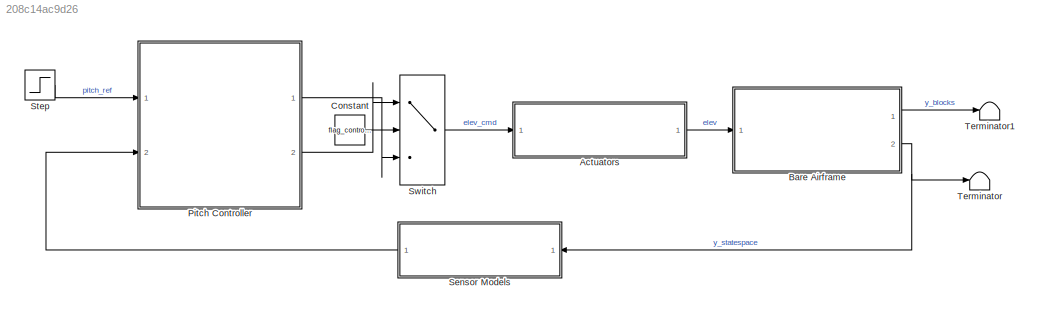
MODEL slx_208c14ac9d26
KIND model
CONFIG AbsTol = auto
CONFIG EnableMultiTasking = off
CONFIG FixedStep = 0.005
CONFIG MaxStep = auto
CONFIG MinStep = auto
CONFIG RelTol = 1e-3
CONFIG SampleTimeConstraint = Unconstrained
CONFIG Solver = FixedStepAuto
CONFIG SolverName = FixedStepAuto
CONFIG StartTime = 0.0
CONFIG StopTime = 20
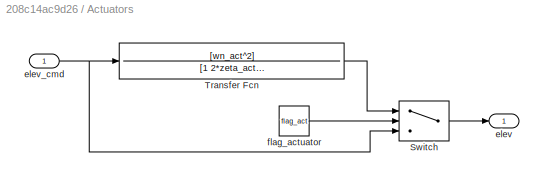
BLOCK [SubSystem] Actuators
  Ports = [1, 1]
  RequestExecContextInheritance = off
BLOCK [Switch] Actuators/Switch
  Criteria = u2 > Threshold
  InputSameDT = off
  SaturateOnIntegerOverflow = off
BLOCK [TransferFcn] Actuators/Transfer Fcn
  Denominator = [1 2*zeta_act*wn_act wn_act^2]
  Numerator = [wn_act^2]
BLOCK [Outport] Actuators/elev
  IconDisplay = Port number
  VectorParamsAs1DForOutWhenUnconnected = off
BLOCK [Inport] Actuators/elev_cmd
  IconDisplay = Port number
BLOCK [Constant] Actuators/flag_actuator
  Value = flag_act
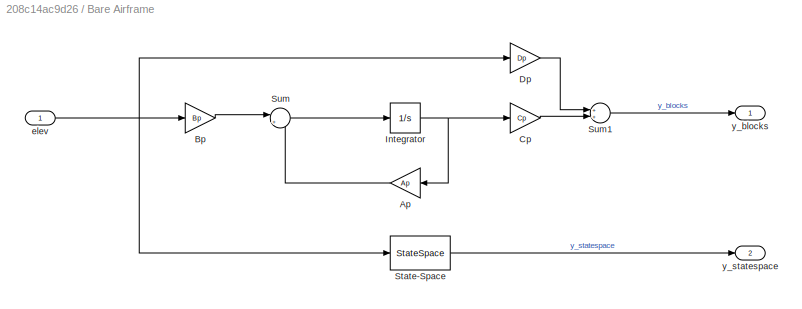
BLOCK [SubSystem] Bare Airframe
  Ports = [1, 2]
  RequestExecContextInheritance = off
BLOCK [Gain] Bare Airframe/Ap
  Gain = Ap
  Multiplication = Matrix(K*u) (u vector)
  OutDataTypeStr = Inherit: Inherit via internal rule
  ParamDataTypeStr = Inherit: Inherit via internal rule
  SaturateOnIntegerOverflow = off
BLOCK [Gain] Bare Airframe/Bp
  Gain = Bp
  Multiplication = Matrix(K*u) (u vector)
  OutDataTypeStr = Inherit: Inherit via internal rule
  ParamDataTypeStr = Inherit: Inherit via internal rule
  SaturateOnIntegerOverflow = off
BLOCK [Gain] Bare Airframe/Cp
  Gain = Cp
  Multiplication = Matrix(K*u) (u vector)
  OutDataTypeStr = Inherit: Inherit via internal rule
  ParamDataTypeStr = Inherit: Inherit via internal rule
  SaturateOnIntegerOverflow = off
BLOCK [Gain] Bare Airframe/Dp
  Gain = Dp
  Multiplication = Matrix(K*u) (u vector)
  OutDataTypeStr = Inherit: Inherit via internal rule
  ParamDataTypeStr = Inherit: Inherit via internal rule
  SaturateOnIntegerOverflow = off
BLOCK [Integrator] Bare Airframe/Integrator
  ContinuousStateAttributes = {'u', 'w','q','theta'}
  InitialCondition = zeros(4,1)
  Ports = [1, 1]
BLOCK [StateSpace] Bare Airframe/State-Space
  A = Ap
  B = Bp
  C = Cp
  D = Dp
  InitialCondition = 0
  Ports = [1, 1]
BLOCK [Sum] Bare Airframe/Sum
  IconShape = round
  InputSameDT = off
  Inputs = |++
  OutDataTypeStr = Inherit: Inherit via internal rule
  Ports = [2, 1]
  SaturateOnIntegerOverflow = off
BLOCK [Sum] Bare Airframe/Sum1
  InputSameDT = off
  OutDataTypeStr = Inherit: Inherit via internal rule
  Ports = [2, 1]
  SaturateOnIntegerOverflow = off
BLOCK [Inport] Bare Airframe/elev
  IconDisplay = Port number
BLOCK [Outport] Bare Airframe/y_blocks
  IconDisplay = Port number
  VectorParamsAs1DForOutWhenUnconnected = off
BLOCK [Outport] Bare Airframe/y_statespace
  IconDisplay = Port number
  Port = 2
  VectorParamsAs1DForOutWhenUnconnected = off
BLOCK [Constant] Constant
  Value = flag_controller
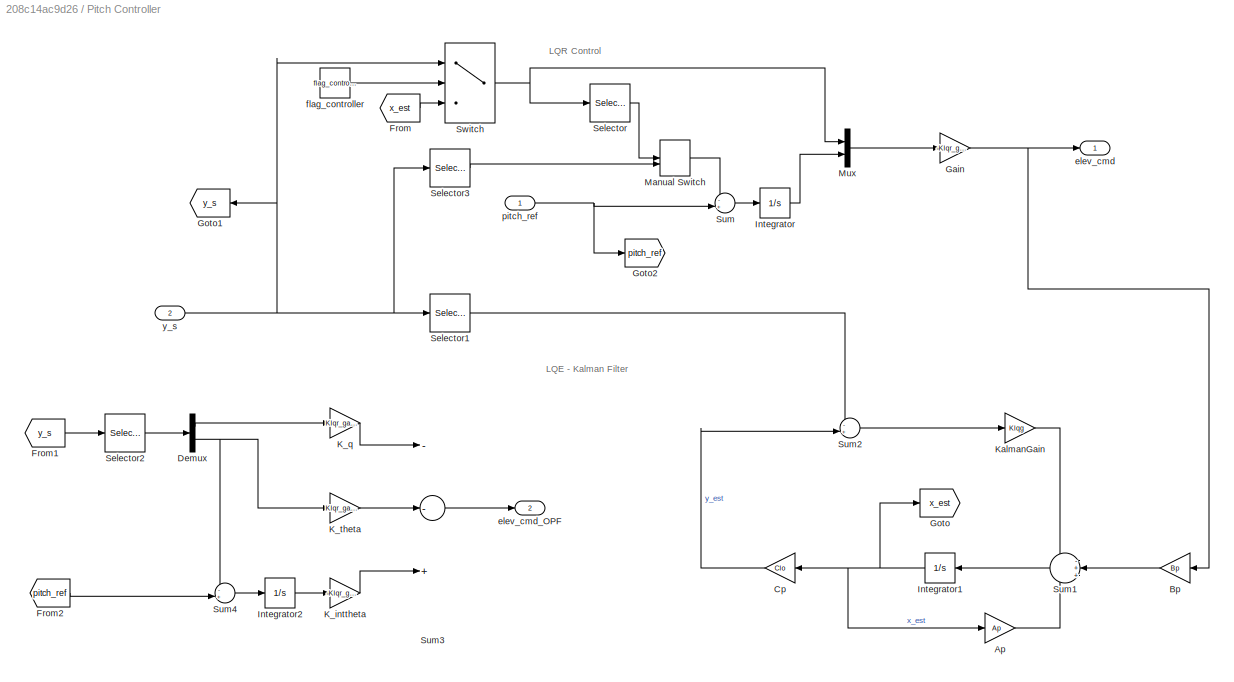
BLOCK [SubSystem] Pitch Controller
  Ports = [2, 2]
  RequestExecContextInheritance = off
BLOCK [Gain] Pitch Controller/Ap
  Gain = Ap
  Multiplication = Matrix(K*u) (u vector)
  OutDataTypeStr = Inherit: Inherit via internal rule
  ParamDataTypeStr = Inherit: Inherit via internal rule
  SaturateOnIntegerOverflow = off
BLOCK [Gain] Pitch Controller/Bp
  Gain = Bp
  Multiplication = Matrix(K*u) (u vector)
  OutDataTypeStr = Inherit: Inherit via internal rule
  ParamDataTypeStr = Inherit: Inherit via internal rule
  SaturateOnIntegerOverflow = off
BLOCK [Gain] Pitch Controller/Cp
  Gain = Clo
  Multiplication = Matrix(K*u) (u vector)
  OutDataTypeStr = Inherit: Inherit via internal rule
  ParamDataTypeStr = Inherit: Inherit via internal rule
  SaturateOnIntegerOverflow = off
BLOCK [Demux] Pitch Controller/Demux
  DisplayOption = bar
  Outputs = 2
  Ports = [1, 2]
BLOCK [From] Pitch Controller/From
  GotoTag = x_est
BLOCK [From] Pitch Controller/From1
  GotoTag = y_s
BLOCK [From] Pitch Controller/From2
  GotoTag = pitch_ref
BLOCK [Gain] Pitch Controller/Gain
  Gain = -Klqr_gain
  Multiplication = Matrix(K*u) (u vector)
  OutDataTypeStr = Inherit: Inherit via internal rule
  ParamDataTypeStr = Inherit: Inherit via internal rule
  SaturateOnIntegerOverflow = off
BLOCK [Goto] Pitch Controller/Goto
  GotoTag = x_est
BLOCK [Goto] Pitch Controller/Goto1
  GotoTag = y_s
BLOCK [Goto] Pitch Controller/Goto2
  GotoTag = pitch_ref
BLOCK [Integrator] Pitch Controller/Integrator
  Ports = [1, 1]
BLOCK [Integrator] Pitch Controller/Integrator1
  ContinuousStateAttributes = {'u', 'w','q','theta'}
  InitialCondition = zeros(4,1)
  Ports = [1, 1]
BLOCK [Integrator] Pitch Controller/Integrator2
  Ports = [1, 1]
BLOCK [Gain] Pitch Controller/K_inttheta
  Gain = -Klqr_gain(5)
  OutDataTypeStr = Inherit: Inherit via internal rule
  ParamDataTypeStr = Inherit: Inherit via internal rule
  SaturateOnIntegerOverflow = off
BLOCK [Gain] Pitch Controller/K_q
  Gain = Klqr_gain(3)
  OutDataTypeStr = Inherit: Inherit via internal rule
  ParamDataTypeStr = Inherit: Inherit via internal rule
  SaturateOnIntegerOverflow = off
BLOCK [Gain] Pitch Controller/K_theta
  Gain = Klqr_gain(4)
  OutDataTypeStr = Inherit: Inherit via internal rule
  ParamDataTypeStr = Inherit: Inherit via internal rule
  SaturateOnIntegerOverflow = off
BLOCK [Gain] Pitch Controller/KalmanGain
  Gain = Klqg
  Multiplication = Matrix(K*u) (u vector)
  OutDataTypeStr = Inherit: Inherit via internal rule
  ParamDataTypeStr = Inherit: Inherit via internal rule
  SaturateOnIntegerOverflow = off
BLOCK [ManualSwitch] Pitch Controller/Manual Switch
BLOCK [Mux] Pitch Controller/Mux
  DisplayOption = bar
  Inputs = 2
  Ports = [2, 1]
BLOCK [Selector] Pitch Controller/Selector
  IndexOptions = Index vector (dialog)
  Indices = 4
  InputPortWidth = 4
  OutputSizes = 1
  Ports = [1, 1]
BLOCK [Selector] Pitch Controller/Selector1
  IndexOptions = Index vector (dialog)
  Indices = [3 4]
  InputPortWidth = 4
  OutputSizes = 1
  Ports = [1, 1]
BLOCK [Selector] Pitch Controller/Selector2
  IndexOptions = Index vector (dialog)
  Indices = [3 4]
  InputPortWidth = 4
  OutputSizes = 1
  Ports = [1, 1]
BLOCK [Selector] Pitch Controller/Selector3
  IndexOptions = Index vector (dialog)
  Indices = 4
  InputPortWidth = 4
  OutputSizes = 1
  Ports = [1, 1]
BLOCK [Sum] Pitch Controller/Sum
  IconShape = round
  InputSameDT = off
  Inputs = -+|
  OutDataTypeStr = Inherit: Inherit via internal rule
  Ports = [2, 1]
  SaturateOnIntegerOverflow = off
BLOCK [Sum] Pitch Controller/Sum1
  IconShape = round
  InputSameDT = off
  Inputs = -++
  OutDataTypeStr = Inherit: Inherit via internal rule
  Ports = [3, 1]
  SaturateOnIntegerOverflow = off
BLOCK [Sum] Pitch Controller/Sum2
  IconShape = round
  InputSameDT = off
  Inputs = -+|
  OutDataTypeStr = Inherit: Inherit via internal rule
  Ports = [2, 1]
  SaturateOnIntegerOverflow = off
BLOCK [Sum] Pitch Controller/Sum3
  InputSameDT = off
  Inputs = --+
  OutDataTypeStr = Inherit: Inherit via internal rule
  Ports = [3, 1]
  SaturateOnIntegerOverflow = off
BLOCK [Sum] Pitch Controller/Sum4
  IconShape = round
  InputSameDT = off
  Inputs = -+|
  OutDataTypeStr = Inherit: Inherit via internal rule
  Ports = [2, 1]
  SaturateOnIntegerOverflow = off
BLOCK [Switch] Pitch Controller/Switch
  Criteria = u2 > Threshold
  InputSameDT = off
  SaturateOnIntegerOverflow = off
BLOCK [Outport] Pitch Controller/elev_cmd
  IconDisplay = Port number
  VectorParamsAs1DForOutWhenUnconnected = off
BLOCK [Outport] Pitch Controller/elev_cmd_OPF
  IconDisplay = Port number
  Port = 2
  VectorParamsAs1DForOutWhenUnconnected = off
BLOCK [Constant] Pitch Controller/flag_controller
  Value = flag_controller
BLOCK [Inport] Pitch Controller/pitch_ref
  IconDisplay = Port number
BLOCK [Inport] Pitch Controller/y_s 
  IconDisplay = Port number
  Port = 2
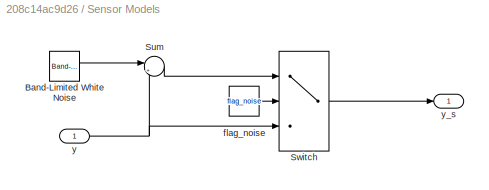
BLOCK [SubSystem] Sensor Models
  Ports = [1, 1]
  RequestExecContextInheritance = off
BLOCK [Reference] Sensor Models/Band-Limited White Noise  REF=simulink/Sources/Band-Limited
White Noise
  Ports = [0, 1]
  SourceBlock = simulink/Sources/Band-Limited\nWhite Noise
  SourceProductBaseCode = SL
  SourceProductName = Simulink
  SourceType = Band-Limited White Noise.
BLOCK [Sum] Sensor Models/Sum
  IconShape = round
  InputSameDT = off
  Inputs = |++
  OutDataTypeStr = Inherit: Inherit via internal rule
  Ports = [2, 1]
  SaturateOnIntegerOverflow = off
BLOCK [Switch] Sensor Models/Switch
  Criteria = u2 > Threshold
  InputSameDT = off
  SaturateOnIntegerOverflow = off
BLOCK [Constant] Sensor Models/flag_noise
  Value = flag_noise
BLOCK [Inport] Sensor Models/y
  IconDisplay = Port number
BLOCK [Outport] Sensor Models/y_s
  IconDisplay = Port number
  VectorParamsAs1DForOutWhenUnconnected = off
BLOCK [Step] Step
  SampleTime = 0
BLOCK [Switch] Switch
  Criteria = u2 > Threshold
  InputSameDT = off
  SaturateOnIntegerOverflow = off
  Threshold = 1
BLOCK [Terminator] Terminator
BLOCK [Terminator] Terminator1
ANNOTATION Pitch Controller: LQE - Kalman Filter
ANNOTATION Pitch Controller: LQR Control
LINE Actuators/Switch:1 -> Actuators/elev:1
LINE Actuators/Transfer Fcn:1 -> Actuators/Switch:1
NET Actuators/elev_cmd:1 -> Actuators/Switch:3, Actuators/Transfer Fcn:1
LINE Actuators/flag_actuator:1 -> Actuators/Switch:2
LINE Actuators:1 -> Bare Airframe:1
LINE Bare Airframe/Ap:1 -> Bare Airframe/Sum:2
LINE Bare Airframe/Bp:1 -> Bare Airframe/Sum:1
LINE Bare Airframe/Cp:1 -> Bare Airframe/Sum1:2
LINE Bare Airframe/Dp:1 -> Bare Airframe/Sum1:1
NET Bare Airframe/Integrator:1 -> Bare Airframe/Ap:1, Bare Airframe/Cp:1
LINE Bare Airframe/State-Space:1 -> Bare Airframe/y_statespace:1
LINE Bare Airframe/Sum1:1 -> Bare Airframe/y_blocks:1
LINE Bare Airframe/Sum:1 -> Bare Airframe/Integrator:1
NET Bare Airframe/elev:1 -> Bare Airframe/Bp:1, Bare Airframe/Dp:1, Bare Airframe/State-Space:1
LINE Bare Airframe:1 -> Terminator1:1
NET Bare Airframe:2 -> Sensor Models:1, Terminator:1
LINE Constant:1 -> Switch:2
LINE Pitch Controller/Ap:1 -> Pitch Controller/Sum1:3
LINE Pitch Controller/Bp:1 -> Pitch Controller/Sum1:2
LINE Pitch Controller/Cp:1 -> Pitch Controller/Sum2:2
LINE Pitch Controller/Demux:1 -> Pitch Controller/K_q:1
NET Pitch Controller/Demux:2 -> Pitch Controller/K_theta:1, Pitch Controller/Sum4:1
LINE Pitch Controller/From1:1 -> Pitch Controller/Selector2:1
LINE Pitch Controller/From2:1 -> Pitch Controller/Sum4:2
LINE Pitch Controller/From:1 -> Pitch Controller/Switch:3
NET Pitch Controller/Gain:1 -> Pitch Controller/Bp:1, Pitch Controller/elev_cmd:1
NET Pitch Controller/Integrator1:1 -> Pitch Controller/Ap:1, Pitch Controller/Cp:1, Pitch Controller/Goto:1
LINE Pitch Controller/Integrator2:1 -> Pitch Controller/K_inttheta:1
LINE Pitch Controller/Integrator:1 -> Pitch Controller/Mux:2
LINE Pitch Controller/K_inttheta:1 -> Pitch Controller/Sum3:3
LINE Pitch Controller/K_q:1 -> Pitch Controller/Sum3:1
LINE Pitch Controller/K_theta:1 -> Pitch Controller/Sum3:2
LINE Pitch Controller/KalmanGain:1 -> Pitch Controller/Sum1:1
LINE Pitch Controller/Manual Switch:1 -> Pitch Controller/Sum:1
LINE Pitch Controller/Mux:1 -> Pitch Controller/Gain:1
LINE Pitch Controller/Selector1:1 -> Pitch Controller/Sum2:1
LINE Pitch Controller/Selector2:1 -> Pitch Controller/Demux:1
LINE Pitch Controller/Selector3:1 -> Pitch Controller/Manual Switch:2
LINE Pitch Controller/Selector:1 -> Pitch Controller/Manual Switch:1
LINE Pitch Controller/Sum1:1 -> Pitch Controller/Integrator1:1
LINE Pitch Controller/Sum2:1 -> Pitch Controller/KalmanGain:1
LINE Pitch Controller/Sum3:1 -> Pitch Controller/elev_cmd_OPF:1
LINE Pitch Controller/Sum4:1 -> Pitch Controller/Integrator2:1
LINE Pitch Controller/Sum:1 -> Pitch Controller/Integrator:1
NET Pitch Controller/Switch:1 -> Pitch Controller/Mux:1, Pitch Controller/Selector:1
LINE Pitch Controller/flag_controller:1 -> Pitch Controller/Switch:2
NET Pitch Controller/pitch_ref:1 -> Pitch Controller/Goto2:1, Pitch Controller/Sum:2
NET Pitch Controller/y_s :1 -> Pitch Controller/Goto1:1, Pitch Controller/Selector1:1, Pitch Controller/Selector3:1, Pitch Controller/Switch:1
LINE Pitch Controller:1 -> Switch:3
LINE Pitch Controller:2 -> Switch:1
LINE Sensor Models/Band-Limited White Noise:1 -> Sensor Models/Sum:1
LINE Sensor Models/Sum:1 -> Sensor Models/Switch:1
LINE Sensor Models/Switch:1 -> Sensor Models/y_s:1
LINE Sensor Models/flag_noise:1 -> Sensor Models/Switch:2
NET Sensor Models/y:1 -> Sensor Models/Sum:2, Sensor Models/Switch:3
LINE Sensor Models:1 -> Pitch Controller:2
LINE Step:1 -> Pitch Controller:1
LINE Switch:1 -> Actuators:1
note: NET lines group one-source signal fan-out (src -> all destinations, sorted); 1:1 wires keep LINE
